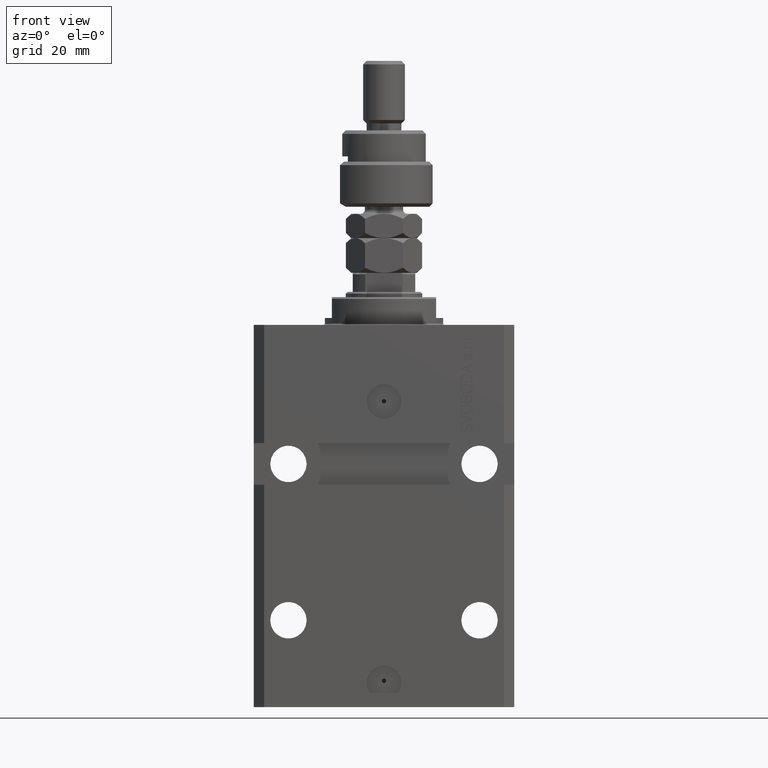
[diagram: clean part render]
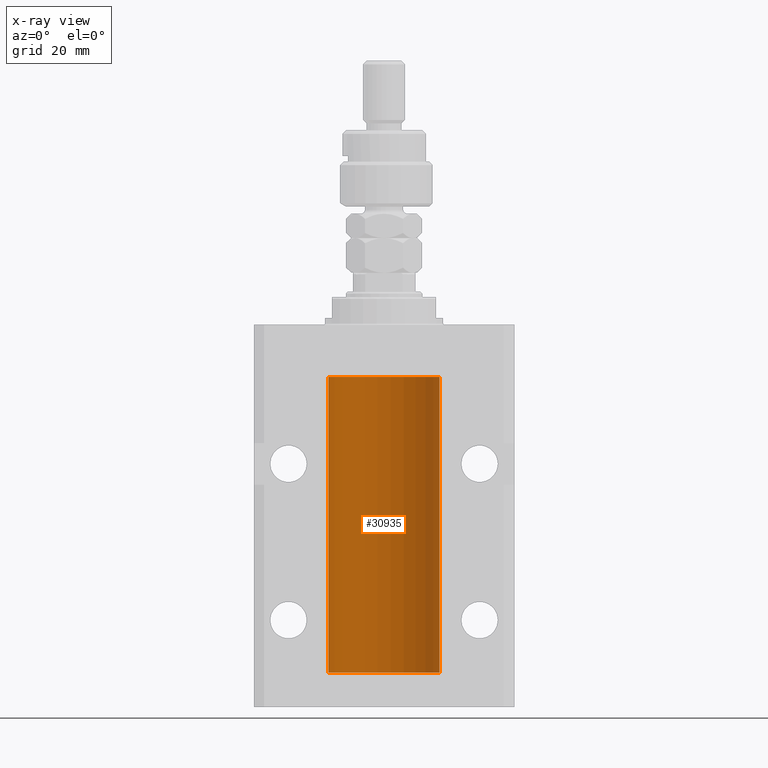
[diagram: x-ray — body ghosted, one internal face saturated and labeled with its STEP entity id]
A machine part, front view, then the same camera in x-ray: the body is ghosted and one INTERNAL B-rep face — a face not visible from any outside direction — is saturated and labeled: STEP entity #30935.
In plain terms, the highlighted cylindrical surface (partial cylindrical patch) has radius 16 mm, axis along (0, 0, 1).
Its self-contained STEP definition (entity closure, byte-faithful):
#282 = CARTESIAN_POINT ( 'NONE',  ( -16.00000000000013145, 3.685127046438747128E-13, -98.62500000000343903 ) ) ;
#1501 = CARTESIAN_POINT ( 'NONE',  ( -16.00000000000000000, 0.1631714642025800244, -22.62499999999985789 ) ) ;
#1512 = ORIENTED_EDGE ( 'NONE', *, *, #8970, .T. ) ;
#1988 = CARTESIAN_POINT ( 'NONE',  ( -15.99070426498503217, 0.5462220647145618058, -22.31460064614143590 ) ) ;
#2409 = VERTEX_POINT ( 'NONE', #19782 ) ;
#2734 = ORIENTED_EDGE ( 'NONE', *, *, #35511, .F. ) ;
#3355 = CARTESIAN_POINT ( 'NONE',  ( -15.99999999999998934, 0.1631714642025804407, -98.62499999999987210 ) ) ;
#3588 = CARTESIAN_POINT ( 'NONE',  ( -15.99070426498503572, 0.5462220647145610286, -98.31460064614144301 ) ) ;
#3595 = EDGE_CURVE ( 'NONE', #11982, #27200, #13228, .T. ) ;
#4025 = DIRECTION ( 'NONE',  ( -0.000000000000000000, -0.000000000000000000, 1.000000000000000000 ) ) ;
#4083 = CARTESIAN_POINT ( 'NONE',  ( -15.98778717651346604, 0.6250289588122097673, -98.08131585687051768 ) ) ;
#4148 = VECTOR ( 'NONE', #30088, 1000.000000000000000 ) ;
#4983 = EDGE_CURVE ( 'NONE', #2409, #27200, #28600, .T. ) ;
#5294 = LINE ( 'NONE', #43103, #27410 ) ;
#5533 = CARTESIAN_POINT ( 'NONE',  ( -15.99228023727724413, 0.5003781296993413674, -22.38347829554236057 ) ) ;
#7121 = DIRECTION ( 'NONE',  ( 0.000000000000000000, 0.000000000000000000, 1.000000000000000000 ) ) ;
#7546 = VERTEX_POINT ( 'NONE', #13747 ) ;
#7705 = VERTEX_POINT ( 'NONE', #18814 ) ;
#8110 = DIRECTION ( 'NONE',  ( 1.000000000000000000, 0.000000000000000000, 0.000000000000000000 ) ) ;
#8136 = CARTESIAN_POINT ( 'NONE',  ( -15.99070653155267685, 0.5573233280232928744, -97.67348148680505915 ) ) ;
#8831 = CARTESIAN_POINT ( 'NONE',  ( -15.99070653155267685, 0.5573233280232986475, -21.67348148680506625 ) ) ;
#8957 = AXIS2_PLACEMENT_3D ( 'NONE', #27125, #30921, #34728 ) ;
#8970 = EDGE_CURVE ( 'NONE', #2409, #7705, #39880, .T. ) ;
#9314 = CARTESIAN_POINT ( 'NONE',  ( -15.99707730059171240, 0.3150375992092407373, -21.45402333202571654 ) ) ;
#9826 = VECTOR ( 'NONE', #4025, 1000.000000000000000 ) ;
#11982 = VERTEX_POINT ( 'NONE', #29637 ) ;
#12070 = ORIENTED_EDGE ( 'NONE', *, *, #4983, .F. ) ;
#13228 = CIRCLE ( 'NONE', #18139, 16.00000000000000000 ) ;
#13747 = CARTESIAN_POINT ( 'NONE',  ( 16.00000000000000000, 0.000000000000000000, -100.0999999999999943 ) ) ;
#15414 = ORIENTED_EDGE ( 'NONE', *, *, #34367, .T. ) ;
#16436 = CARTESIAN_POINT ( 'NONE',  ( -15.99548640841683067, 0.3843705577988847377, -21.50046628527008608 ) ) ;
#16683 = CARTESIAN_POINT ( 'NONE',  ( -15.99711699979842017, 0.3253759916140657737, -22.55856151623175521 ) ) ;
#17329 = VERTEX_POINT ( 'NONE', #26312 ) ;
#18139 = AXIS2_PLACEMENT_3D ( 'NONE', #34498, #7121, #8110 ) ;
#18814 = CARTESIAN_POINT ( 'NONE',  ( -16.00000000000013145, 3.685127038166941002E-13, -22.62500000000341771 ) ) ;
#18999 = CARTESIAN_POINT ( 'NONE',  ( -16.00000000000000000, 1.959434878635765131E-15, -100.0999999999999943 ) ) ;
#19552 = CARTESIAN_POINT ( 'NONE',  ( -15.98779057735153941, 0.6249419637998017141, -97.83670145863504786 ) ) ;
#19782 = CARTESIAN_POINT ( 'NONE',  ( -16.00000000000000000, 1.643679961284177128E-16, -21.37499999999999645 ) ) ;
#20067 = CYLINDRICAL_SURFACE ( 'NONE', #49557, 16.00000000000000000 ) ;
#21376 = VERTEX_POINT ( 'NONE', #26924 ) ;
#22618 = CARTESIAN_POINT ( 'NONE',  ( -16.00000000000000711, 0.08259886010188650929, -97.37500000000000000 ) ) ;
#22862 = CARTESIAN_POINT ( 'NONE',  ( -15.99548640841682712, 0.3843705577988784650, -97.50046628527007897 ) ) ;
#23611 = CARTESIAN_POINT ( 'NONE',  ( -15.98844267028590949, 0.6088369347963275002, -98.16324735024325321 ) ) ;
#24307 = CARTESIAN_POINT ( 'NONE',  ( -15.98778717651346071, 0.6250289588122140971, -22.08131585687052478 ) ) ;
#24458 = EDGE_CURVE ( 'NONE', #46537, #7705, #5294, .T. ) ;
#24761 = ORIENTED_EDGE ( 'NONE', *, *, #34045, .T. ) ;
#24804 = CARTESIAN_POINT ( 'NONE',  ( -15.98779057735153941, 0.6249419637998100407, -21.83670145863507273 ) ) ;
#25311 = CARTESIAN_POINT ( 'NONE',  ( -15.99934216141748244, 0.1636497843296417787, -21.39126528029306229 ) ) ;
#25702 = EDGE_LOOP ( 'NONE', ( #2734, #26388, #15414, #29636, #12070, #1512, #34085, #24761 ) ) ;
#26312 = CARTESIAN_POINT ( 'NONE',  ( -16.00000000000000000, 1.959434878635765131E-15, -100.0999999999999943 ) ) ;
#26388 = ORIENTED_EDGE ( 'NONE', *, *, #29981, .F. ) ;
#26924 = CARTESIAN_POINT ( 'NONE',  ( -16.00000000000013145, 3.685127046438747128E-13, -98.62500000000343903 ) ) ;
#27125 = CARTESIAN_POINT ( 'NONE',  ( 0.000000000000000000, 0.000000000000000000, -100.0999999999999943 ) ) ;
#27200 = VERTEX_POINT ( 'NONE', #44981 ) ;
#27410 = VECTOR ( 'NONE', #43344, 1000.000000000000000 ) ;
#27693 = FACE_OUTER_BOUND ( 'NONE', #25702, .T. ) ;
#27933 = CARTESIAN_POINT ( 'NONE',  ( 0.000000000000000000, 0.000000000000000000, -100.0999999999999943 ) ) ;
#28600 = LINE ( 'NONE', #43058, #37648 ) ;
#28871 = CARTESIAN_POINT ( 'NONE',  ( -15.98844267028591482, 0.6088369347963316081, -22.16324735024328518 ) ) ;
#29636 = ORIENTED_EDGE ( 'NONE', *, *, #3595, .T. ) ;
#29637 = CARTESIAN_POINT ( 'NONE',  ( 16.00000000000000000, 0.000000000000000000, -15.00000000000000000 ) ) ;
#29981 = EDGE_CURVE ( 'NONE', #7546, #17329, #42999, .T. ) ;
#30088 = DIRECTION ( 'NONE',  ( -0.000000000000000000, -0.000000000000000000, 1.000000000000000000 ) ) ;
#30178 = LINE ( 'NONE', #18999, #9826 ) ;
#30533 = CARTESIAN_POINT ( 'NONE',  ( -16.00000000000000000, -1.303459030566954747E-14, -97.37500000000000000 ) ) ;
#30745 = DIRECTION ( 'NONE',  ( -0.000000000000000000, -0.000000000000000000, 1.000000000000000000 ) ) ;
#30921 = DIRECTION ( 'NONE',  ( 0.000000000000000000, 0.000000000000000000, 1.000000000000000000 ) ) ;
#30935 = ADVANCED_FACE ( 'NONE', ( #27693 ), #20067, .F. ) ;
#31442 = B_SPLINE_CURVE_WITH_KNOTS ( 'NONE', 3,
 ( #45701, #22618, #38098, #34523, #22862, #8136, #19552, #4083, #23611, #3588, #35019, #49532, #3355, #282 ),
 .UNSPECIFIED., .F., .F.,
 ( 4, 2, 2, 2, 2, 2, 4 ),
 ( 1.003919637555167698E-18, 0.0002442776652680894158, 0.0004885553305361776391, 0.0009771106610723541940, 0.001221388326340463017, 0.001465665991608572274, 0.001954221322144760863 ),
 .UNSPECIFIED. ) ;
#32660 = CARTESIAN_POINT ( 'NONE',  ( -16.00000000000000711, 0.08259886010189904093, -21.37500000000000000 ) ) ;
#33374 = CARTESIAN_POINT ( 'NONE',  ( 16.00000000000000000, 0.000000000000000000, -100.0999999999999943 ) ) ;
#34045 = EDGE_CURVE ( 'NONE', #46537, #21376, #31442, .T. ) ;
#34085 = ORIENTED_EDGE ( 'NONE', *, *, #24458, .F. ) ;
#34367 = EDGE_CURVE ( 'NONE', #7546, #11982, #40735, .T. ) ;
#34498 = CARTESIAN_POINT ( 'NONE',  ( 0.000000000000000000, 0.000000000000000000, -15.00000000000000000 ) ) ;
#34523 = CARTESIAN_POINT ( 'NONE',  ( -15.99707730059171240, 0.3150375992092294686, -97.45402333202572720 ) ) ;
#34728 = DIRECTION ( 'NONE',  ( 1.000000000000000000, 0.000000000000000000, 0.000000000000000000 ) ) ;
#35019 = CARTESIAN_POINT ( 'NONE',  ( -15.99228023727724057, 0.5003781296993360383, -98.38347829554236057 ) ) ;
#35511 = EDGE_CURVE ( 'NONE', #17329, #21376, #30178, .T. ) ;
#37648 = VECTOR ( 'NONE', #39499, 1000.000000000000000 ) ;
#38098 = CARTESIAN_POINT ( 'NONE',  ( -15.99934216141748244, 0.1636497843296308152, -97.39126528029306940 ) ) ;
#39499 = DIRECTION ( 'NONE',  ( -0.000000000000000000, -0.000000000000000000, 1.000000000000000000 ) ) ;
#39880 = B_SPLINE_CURVE_WITH_KNOTS ( 'NONE', 3,
 ( #44073, #32660, #25311, #9314, #16436, #8831, #24804, #24307, #28871, #1988, #5533, #16683, #1501, #43829 ),
 .UNSPECIFIED., .F., .F.,
 ( 4, 2, 2, 2, 2, 2, 4 ),
 ( 1.597328219370744179E-19, 0.0002442776652680942405, 0.0004885553305361882643, 0.0009771106610723839011, 0.001221388326340481665, 0.001465665991608579430, 0.001954221322144767369 ),
 .UNSPECIFIED. ) ;
#40735 = LINE ( 'NONE', #33374, #4148 ) ;
#42999 = CIRCLE ( 'NONE', #8957, 16.00000000000000000 ) ;
#43058 = CARTESIAN_POINT ( 'NONE',  ( -16.00000000000000000, 1.959434878635765131E-15, -100.0999999999999943 ) ) ;
#43103 = CARTESIAN_POINT ( 'NONE',  ( -16.00000000000000000, 1.959434878635765131E-15, -100.0999999999999943 ) ) ;
#43344 = DIRECTION ( 'NONE',  ( -0.000000000000000000, -0.000000000000000000, 1.000000000000000000 ) ) ;
#43829 = CARTESIAN_POINT ( 'NONE',  ( -16.00000000000013145, 3.685127038166941002E-13, -22.62500000000341771 ) ) ;
#44073 = CARTESIAN_POINT ( 'NONE',  ( -16.00000000000000000, 1.643679961284177128E-16, -21.37499999999999645 ) ) ;
#44981 = CARTESIAN_POINT ( 'NONE',  ( -16.00000000000000000, 1.959434878635765131E-15, -15.00000000000000000 ) ) ;
#45701 = CARTESIAN_POINT ( 'NONE',  ( -16.00000000000000000, -1.303459030566954747E-14, -97.37500000000000000 ) ) ;
#46217 = DIRECTION ( 'NONE',  ( 1.000000000000000000, 0.000000000000000000, 0.000000000000000000 ) ) ;
#46537 = VERTEX_POINT ( 'NONE', #30533 ) ;
#49532 = CARTESIAN_POINT ( 'NONE',  ( -15.99711699979841661, 0.3253759916140614439, -98.55856151623174810 ) ) ;
#49557 = AXIS2_PLACEMENT_3D ( 'NONE', #27933, #30745, #46217 ) ;